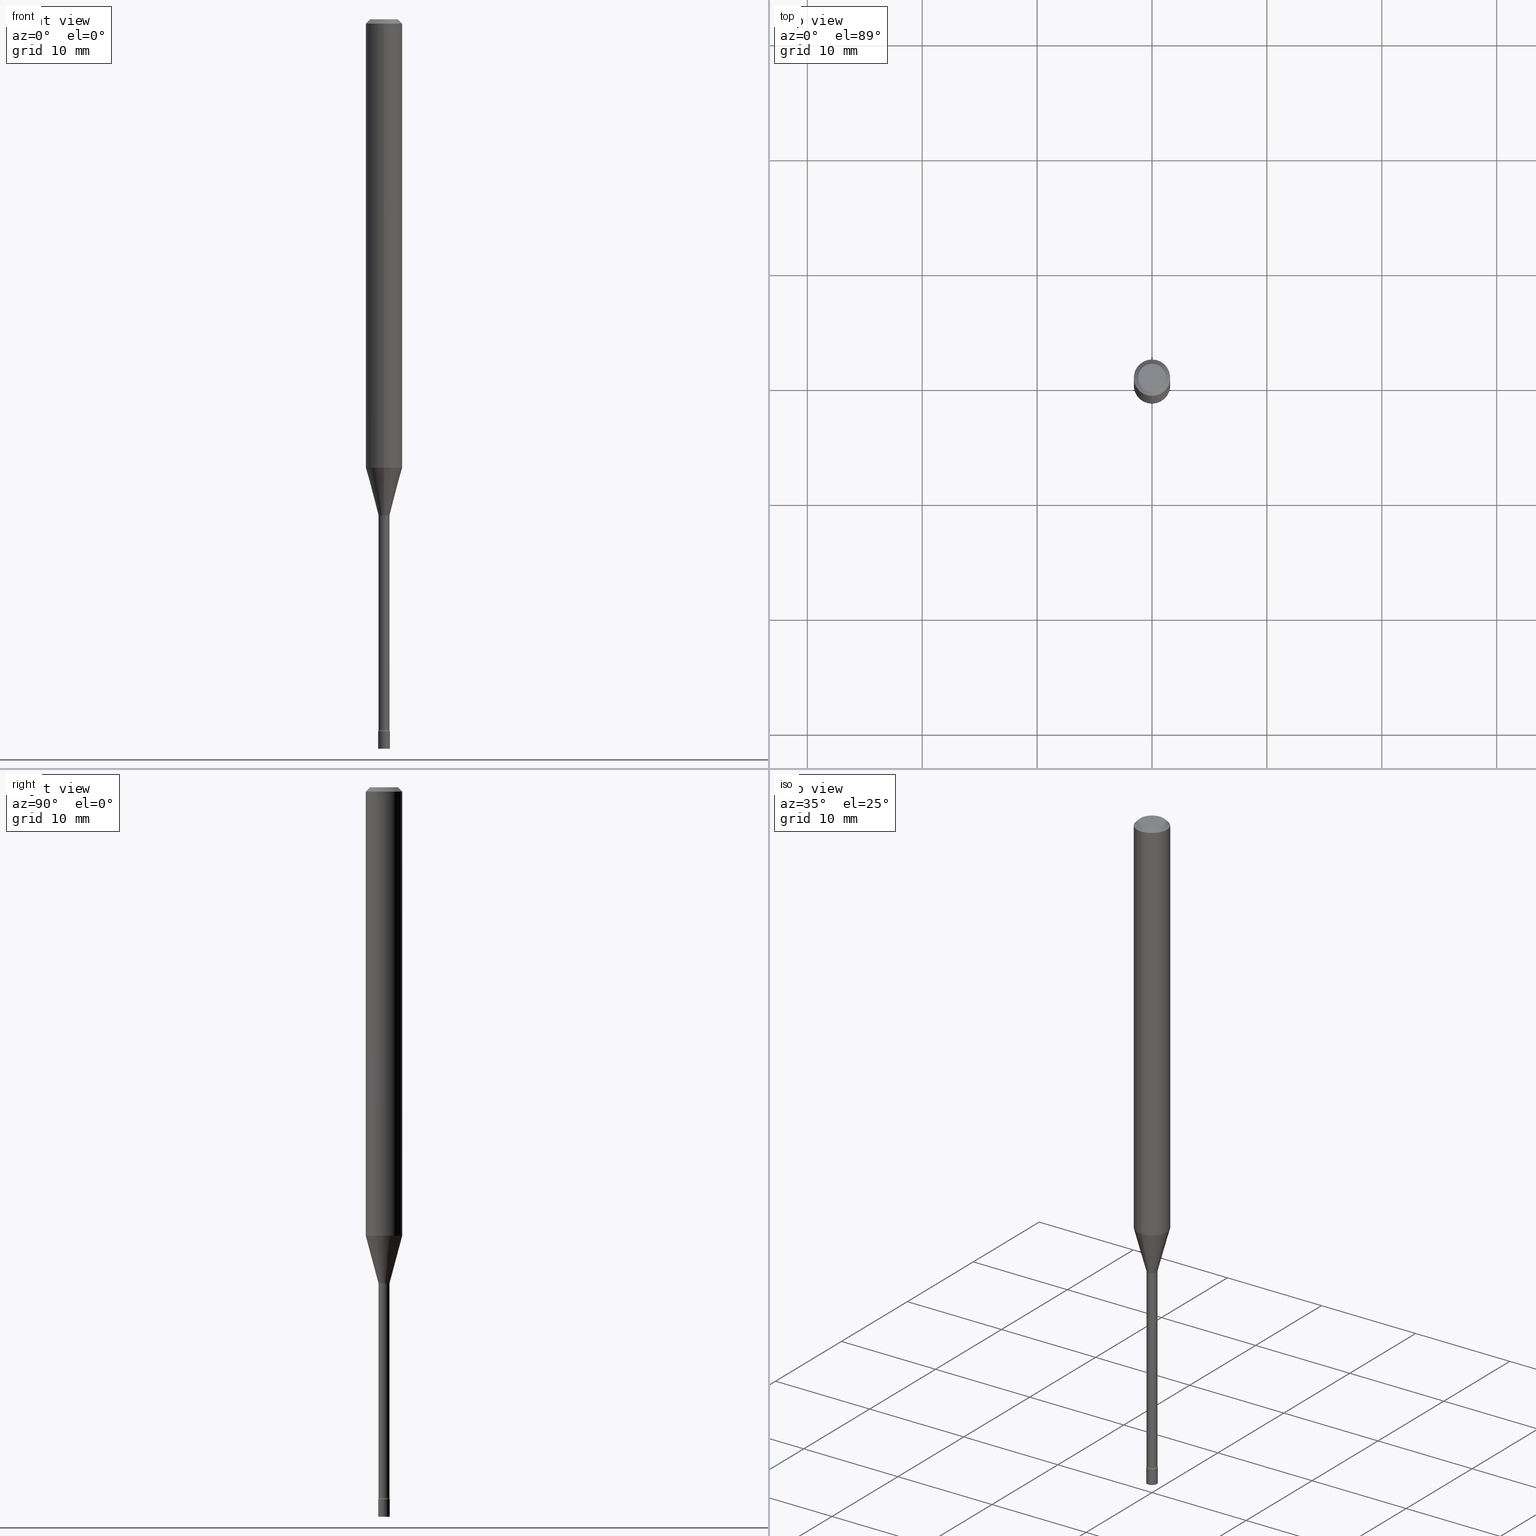
[diagram: canonical four-view strip — front | top / right | iso, engineering-drawing reading convention]
A machine part, canonical four-view strip (front | top / right | iso — engineering-drawing reading convention). The complete STEP part file that produces these views, byte-faithful:
ISO-10303-21;
HEADER;
FILE_DESCRIPTION (( 'STEP AP203' ),
    '1' );
FILE_NAME ('09646.STEP',
    '2024-03-09T00:20:42',
    ( '' ),
    ( '' ),
    'SwSTEP 2.0',
    'SolidWorks 2023',
    '' );
FILE_SCHEMA (( 'CONFIG_CONTROL_DESIGN' ));
ENDSEC;

DATA;
#1 = DIRECTION ( 'NONE',  ( -6.982962677686265922E-15, -1.000000000000000000, 3.491544618691502502E-15 ) ) ;
#2 = ADVANCED_FACE ( 'NONE', ( #11 ), #454, .T. ) ;
#3 = APPLICATION_CONTEXT ( 'configuration controlled 3d designs of mechanical parts and assemblies' ) ;
#4 = ORIENTED_EDGE ( 'NONE', *, *, #144, .F. ) ;
#5 = FACE_OUTER_BOUND ( 'NONE', #118, .T. ) ;
#6 = ORIENTED_EDGE ( 'NONE', *, *, #44, .F. ) ;
#7 = PLANE ( 'NONE',  #184 ) ;
#8 = AXIS2_PLACEMENT_3D ( 'NONE', #255, #250, #416 ) ;
#9 = CYLINDRICAL_SURFACE ( 'NONE', #372, 0.06250000000000000000 ) ;
#10 = CONICAL_SURFACE ( 'NONE', #68, 0.01931111260566397564, 0.2617993877991498519 ) ;
#11 = FACE_OUTER_BOUND ( 'NONE', #288, .T. ) ;
#12 = DATE_TIME_ROLE ( 'creation_date' ) ;
#13 = EDGE_CURVE ( 'NONE', #368, #309, #487, .T. ) ;
#14 = CARTESIAN_POINT ( 'NONE',  ( -1.312796983404428095E-16, -0.01880000000000857374, -2.434121224617320944 ) ) ;
#15 = CARTESIAN_POINT ( 'NONE',  ( 5.952459966126715215E-29, -8.498842863055376758E-15, -2.434121224617320944 ) ) ;
#16 = PERSON_AND_ORGANIZATION ( #265, #503 ) ;
#17 = PERSON_AND_ORGANIZATION_ROLE ( 'design_supplier' ) ;
#18 = CARTESIAN_POINT ( 'NONE',  ( 0.000000000000000000, 0.000000000000000000, 0.000000000000000000 ) ) ;
#19 = AXIS2_PLACEMENT_3D ( 'NONE', #156, #477, #160 ) ;
#20 = CARTESIAN_POINT ( 'NONE',  ( 0.000000000000000000, 0.000000000000000000, 0.000000000000000000 ) ) ;
#21 = DIRECTION ( 'NONE',  ( -2.445424618103204141E-29, 3.491544618691502502E-15, 1.000000000000000000 ) ) ;
#22 = EDGE_LOOP ( 'NONE', ( #30, #277 ) ) ;
#23 = PLANE ( 'NONE',  #125 ) ;
#24 = LINE ( 'NONE', #286, #421 ) ;
#25 = CARTESIAN_POINT ( 'NONE',  ( 6.113672015462842613E-29, -8.728703347107864943E-15, -2.500000000000000000 ) ) ;
#26 = CIRCLE ( 'NONE', #461, 0.01931111260566397564 ) ;
#27 = PLANE ( 'NONE',  #293 ) ;
#28 = EDGE_CURVE ( 'NONE', #481, #315, #24, .T. ) ;
#29 = CYLINDRICAL_SURFACE ( 'NONE', #260, 0.02000000000000000042 ) ;
#30 = ORIENTED_EDGE ( 'NONE', *, *, #128, .T. ) ;
#31 = CARTESIAN_POINT ( 'NONE',  ( 1.396592535537849721E-16, 0.01999999999999147945, -2.440000000000000391 ) ) ;
#32 = ORIENTED_EDGE ( 'NONE', *, *, #326, .T. ) ;
#33 = DIRECTION ( 'NONE',  ( 2.438088387897960049E-29, -3.491481338843145188E-15, -1.000000000000000000 ) ) ;
#34 = AXIS2_PLACEMENT_3D ( 'NONE', #168, #490, #385 ) ;
#35 = ORIENTED_EDGE ( 'NONE', *, *, #445, .F. ) ;
#36 = AXIS2_PLACEMENT_3D ( 'NONE', #108, #270, #164 ) ;
#37 = EDGE_CURVE ( 'NONE', #368, #113, #194, .T. ) ;
#38 = EDGE_LOOP ( 'NONE', ( #58, #468, #4, #279 ) ) ;
#39 = ORIENTED_EDGE ( 'NONE', *, *, #130, .F. ) ;
#40 = EDGE_LOOP ( 'NONE', ( #479, #112, #47, #45 ) ) ;
#41 = AXIS2_PLACEMENT_3D ( 'NONE', #266, #71, #74 ) ;
#42 = AXIS2_PLACEMENT_3D ( 'NONE', #72, #472, #356 ) ;
#43 = FACE_OUTER_BOUND ( 'NONE', #325, .T. ) ;
#44 = EDGE_CURVE ( 'NONE', #231, #196, #460, .T. ) ;
#45 = ORIENTED_EDGE ( 'NONE', *, *, #148, .F. ) ;
#46 = DIRECTION ( 'NONE',  ( -2.445424618103204141E-29, 3.491544618691502502E-15, 1.000000000000000000 ) ) ;
#47 = ORIENTED_EDGE ( 'NONE', *, *, #128, .F. ) ;
#48 = CARTESIAN_POINT ( 'NONE',  ( 2.906514588320701631E-16, 0.01931111260565804635, -1.698092501787273001 ) ) ;
#49 = ORIENTED_EDGE ( 'NONE', *, *, #326, .F. ) ;
#50 = AXIS2_PLACEMENT_3D ( 'NONE', #367, #152, #126 ) ;
#51 = APPROVAL_ROLE ( '' ) ;
#52 = DIRECTION ( 'NONE',  ( -2.445468806185136597E-29, 3.491481338843145583E-15, 1.000000000000000000 ) ) ;
#53 = DIRECTION ( 'NONE',  ( 0.000000000000000000, 0.000000000000000000, 1.000000000000000000 ) ) ;
#54 = DIRECTION ( 'NONE',  ( -6.982962677686265922E-15, -1.000000000000000000, 0.000000000000000000 ) ) ;
#55 = DATE_TIME_ROLE ( 'classification_date' ) ;
#56 = LINE ( 'NONE', #177, #183 ) ;
#57 = CC_DESIGN_PERSON_AND_ORGANIZATION_ASSIGNMENT ( #133, #17, ( #95 ) ) ;
#58 = ORIENTED_EDGE ( 'NONE', *, *, #222, .T. ) ;
#59 = CIRCLE ( 'NONE', #269, 0.01880000000000007360 ) ;
#60 = DATE_AND_TIME ( #491, #296 ) ;
#61 = ORIENTED_EDGE ( 'NONE', *, *, #375, .F. ) ;
#62 = CARTESIAN_POINT ( 'NONE',  ( 4.364351673553919652E-16, 0.06249999999999995143, -0.01500000000000024751 ) ) ;
#63 = CARTESIAN_POINT ( 'NONE',  ( 3.668136927154813270E-31, -5.237316928037264353E-17, -0.01500000000000003067 ) ) ;
#64 = CARTESIAN_POINT ( 'NONE',  ( 1.335820343229586211E-16, 0.01879999999999405758, -1.701974787463810923 ) ) ;
#65 = EDGE_CURVE ( 'NONE', #481, #268, #217, .T. ) ;
#66 = FACE_OUTER_BOUND ( 'NONE', #40, .T. ) ;
#67 = AXIS2_PLACEMENT_3D ( 'NONE', #301, #457, #101 ) ;
#68 = AXIS2_PLACEMENT_3D ( 'NONE', #339, #21, #54 ) ;
#69 = CC_DESIGN_SECURITY_CLASSIFICATION ( #518, ( #95 ) ) ;
#70 = VERTEX_POINT ( 'NONE', #463 ) ;
#71 = DIRECTION ( 'NONE',  ( 2.445424618103203300E-29, -3.491544618691502896E-15, -1.000000000000000000 ) ) ;
#72 = CARTESIAN_POINT ( 'NONE',  ( 4.162126251656327251E-29, -5.942413209611424938E-15, -1.701974787463810923 ) ) ;
#73 = ORIENTED_EDGE ( 'NONE', *, *, #197, .F. ) ;
#74 = DIRECTION ( 'NONE',  ( 6.982962677686265922E-15, 1.000000000000000000, -3.491544618691502896E-15 ) ) ;
#75 = FACE_OUTER_BOUND ( 'NONE', #79, .T. ) ;
#76 = ORIENTED_EDGE ( 'NONE', *, *, #105, .T. ) ;
#77 = AXIS2_PLACEMENT_3D ( 'NONE', #334, #52, #297 ) ;
#78 = ORIENTED_EDGE ( 'NONE', *, *, #136, .T. ) ;
#79 = EDGE_LOOP ( 'NONE', ( #358, #359, #312, #389 ) ) ;
#80 = ORIENTED_EDGE ( 'NONE', *, *, #282, .F. ) ;
#81 = ADVANCED_FACE ( 'NONE', ( #88 ), #9, .T. ) ;
#82 = CARTESIAN_POINT ( 'NONE',  ( 0.02000000000000000042, -8.658873720331001644E-15, -2.440000000000000391 ) ) ;
#83 = ADVANCED_FACE ( 'NONE', ( #219 ), #426, .T. ) ;
#84 = DIRECTION ( 'NONE',  ( -6.982962677686265922E-15, -1.000000000000000000, 0.000000000000000000 ) ) ;
#85 = AXIS2_PLACEMENT_3D ( 'NONE', #371, #451, #377 ) ;
#86 = CIRCLE ( 'NONE', #172, 0.01880000000000000074 ) ;
#87 = DIRECTION ( 'NONE',  ( -2.445424618103204141E-29, 3.491544618691502896E-15, 1.000000000000000000 ) ) ;
#88 = FACE_OUTER_BOUND ( 'NONE', #237, .T. ) ;
#89 = DIRECTION ( 'NONE',  ( -2.445424618103204141E-29, 3.491544618691502502E-15, 1.000000000000000000 ) ) ;
#90 = DIRECTION ( 'NONE',  ( -2.445468806185136597E-29, 3.491481338843145583E-15, 1.000000000000000000 ) ) ;
#91 = EDGE_LOOP ( 'NONE', ( #437, #386, #6, #150 ) ) ;
#92 = APPROVAL_DATE_TIME ( #169, #340 ) ;
#93 = PERSON_AND_ORGANIZATION ( #265, #503 ) ;
#94 = DIRECTION ( 'NONE',  ( -6.982962677686265922E-15, -1.000000000000000000, 3.483106191921935554E-15 ) ) ;
#95 = PRODUCT_DEFINITION_FORMATION_WITH_SPECIFIED_SOURCE ( 'ANY', '', #350, .NOT_KNOWN. ) ;
#96 = SECURITY_CLASSIFICATION_LEVEL ( 'unclassified' ) ;
#97 = COORDINATED_UNIVERSAL_TIME_OFFSET ( 5, 0, .BEHIND. ) ;
#98 = EDGE_CURVE ( 'NONE', #221, #115, #406, .T. ) ;
#99 = DIRECTION ( 'NONE',  ( -6.982962677686265922E-15, -1.000000000000000000, 3.483106191921935554E-15 ) ) ;
#100 = DIRECTION ( 'NONE',  ( 1.000000000000000000, 0.000000000000000000, 0.000000000000000000 ) ) ;
#101 = DIRECTION ( 'NONE',  ( -6.982962677686266711E-15, -1.000000000000000000, 0.000000000000000000 ) ) ;
#102 = DIRECTION ( 'NONE',  ( 7.105427357601003436E-15, 1.000000000000000000, 0.000000000000000000 ) ) ;
#103 = AXIS2_PLACEMENT_3D ( 'NONE', #202, #162, #1 ) ;
#104 = CARTESIAN_POINT ( 'NONE',  ( -3.773273898774340269E-16, -0.04749999999999999362, 1.369374642527742863E-16 ) ) ;
#105 = EDGE_CURVE ( 'NONE', #315, #190, #516, .T. ) ;
#106 = CARTESIAN_POINT ( 'NONE',  ( 3.668136927154813270E-31, -5.237316928037264353E-17, -0.01500000000000003067 ) ) ;
#107 = ORIENTED_EDGE ( 'NONE', *, *, #324, .F. ) ;
#108 = CARTESIAN_POINT ( 'NONE',  ( 5.966836068171818574E-29, -8.519368869607266814E-15, -2.440000000000000391 ) ) ;
#109 = VECTOR ( 'NONE', #264, 39.37007874015748143 ) ;
#110 = APPROVAL_PERSON_ORGANIZATION ( #127, #485, #341 ) ;
#111 = CARTESIAN_POINT ( 'NONE',  ( -4.287811248607203282E-16, -0.06250000000000005551, -0.01499999999999981209 ) ) ;
#112 = ORIENTED_EDGE ( 'NONE', *, *, #282, .T. ) ;
#113 = VERTEX_POINT ( 'NONE', #14 ) ;
#114 = CARTESIAN_POINT ( 'NONE',  ( -1.312796983404601891E-16, -0.01880000000000594043, -1.701974787463810923 ) ) ;
#115 = VERTEX_POINT ( 'NONE', #173 ) ;
#116 = AXIS2_PLACEMENT_3D ( 'NONE', #209, #369, #193 ) ;
#117 = EDGE_CURVE ( 'NONE', #353, #201, #232, .T. ) ;
#118 = EDGE_LOOP ( 'NONE', ( #273, #226, #322, #229 ) ) ;
#119 = FACE_OUTER_BOUND ( 'NONE', #123, .T. ) ;
#120 = ORIENTED_EDGE ( 'NONE', *, *, #445, .T. ) ;
#121 = CARTESIAN_POINT ( 'NONE',  ( -1.348487785899068030E-16, -0.01931111260566990492, -1.698092501787273001 ) ) ;
#122 =( CONVERSION_BASED_UNIT ( 'INCH', #482 ) LENGTH_UNIT ( ) NAMED_UNIT ( #314 ) );
#123 = EDGE_LOOP ( 'NONE', ( #39, #402, #430, #107 ) ) ;
#124 = AXIS2_PLACEMENT_3D ( 'NONE', #20, #497, #141 ) ;
#125 = AXIS2_PLACEMENT_3D ( 'NONE', #345, #33, #499 ) ;
#126 = DIRECTION ( 'NONE',  ( -6.982962677686265922E-15, -1.000000000000000000, 3.491544618691502502E-15 ) ) ;
#127 = PERSON_AND_ORGANIZATION ( #265, #503 ) ;
#128 = EDGE_CURVE ( 'NONE', #240, #435, #305, .T. ) ;
#129 = LINE ( 'NONE', #338, #145 ) ;
#130 = EDGE_CURVE ( 'NONE', #368, #196, #129, .T. ) ;
#131 = DATE_AND_TIME ( #378, #470 ) ;
#132 = AXIS2_PLACEMENT_3D ( 'NONE', #484, #302, #102 ) ;
#133 = PERSON_AND_ORGANIZATION ( #265, #503 ) ;
#134 = AXIS2_PLACEMENT_3D ( 'NONE', #143, #307, #263 ) ;
#135 = LINE ( 'NONE', #140, #210 ) ;
#136 = EDGE_CURVE ( 'NONE', #190, #115, #135, .T. ) ;
#137 = PERSON_AND_ORGANIZATION_ROLE ( 'classification_officer' ) ;
#138 = CARTESIAN_POINT ( 'NONE',  ( 3.758396032934700996E-29, -5.366187674140293231E-15, -1.536909379709240131 ) ) ;
#139 = PERSON_AND_ORGANIZATION ( #265, #503 ) ;
#140 = CARTESIAN_POINT ( 'NONE',  ( -4.364351673553916201E-16, -0.06250000000000000000, 2.182215386682189064E-16 ) ) ;
#141 = DIRECTION ( 'NONE',  ( -6.982962677686265922E-15, -1.000000000000000000, 3.491544618691502502E-15 ) ) ;
#142 = CARTESIAN_POINT ( 'NONE',  ( -1.348487785899068030E-16, -0.01931111260566990492, -1.698092501787273001 ) ) ;
#143 = CARTESIAN_POINT ( 'NONE',  ( 5.966836068171818574E-29, -8.519368869607266814E-15, -2.440000000000000391 ) ) ;
#144 = EDGE_CURVE ( 'NONE', #190, #315, #501, .T. ) ;
#145 = VECTOR ( 'NONE', #214, 39.37007874015748143 ) ;
#146 = AXIS2_PLACEMENT_3D ( 'NONE', #238, #245, #228 ) ;
#147 = CARTESIAN_POINT ( 'NONE',  ( 6.113672015462842613E-29, -8.728703347107864943E-15, -2.500000000000000000 ) ) ;
#148 = EDGE_CURVE ( 'NONE', #246, #240, #56, .T. ) ;
#149 = APPROVAL ( #215, 'UNSPECIFIED' ) ;
#150 = ORIENTED_EDGE ( 'NONE', *, *, #274, .F. ) ;
#151 = CARTESIAN_POINT ( 'NONE',  ( -4.364351673553541985E-16, -0.06250000000000538458, -1.536909379709239909 ) ) ;
#152 = DIRECTION ( 'NONE',  ( -2.445424618103204141E-29, 3.491544618691502502E-15, 1.000000000000000000 ) ) ;
#153 = ORIENTED_EDGE ( 'NONE', *, *, #117, .F. ) ;
#154 = LINE ( 'NONE', #409, #159 ) ;
#155 = ORIENTED_EDGE ( 'NONE', *, *, #117, .T. ) ;
#156 = CARTESIAN_POINT ( 'NONE',  ( -2.360241385057365982E-16, -0.03380000000000854543, -2.434121224617320944 ) ) ;
#157 = EDGE_CURVE ( 'NONE', #268, #231, #292, .T. ) ;
#158 = EDGE_LOOP ( 'NONE', ( #401, #343, #438, #234 ) ) ;
#159 = VECTOR ( 'NONE', #383, 39.37007874015748143 ) ;
#160 = DIRECTION ( 'NONE',  ( -6.982962677686262766E-15, -1.000000000000000000, 0.000000000000000000 ) ) ;
#161 = ORIENTED_EDGE ( 'NONE', *, *, #157, .T. ) ;
#162 = DIRECTION ( 'NONE',  ( -2.445424618103204141E-29, 3.491544618691502502E-15, 1.000000000000000000 ) ) ;
#163 = ORIENTED_EDGE ( 'NONE', *, *, #348, .T. ) ;
#164 = DIRECTION ( 'NONE',  ( -6.982962677686265922E-15, -1.000000000000000000, 0.000000000000000000 ) ) ;
#165 = CIRCLE ( 'NONE', #19, 0.01499999999999997689 ) ;
#166 = COORDINATED_UNIVERSAL_TIME_OFFSET ( 5, 0, .BEHIND. ) ;
#167 = LOCAL_TIME ( 19, 20, 42.00000000000000000, #496 ) ;
#168 = CARTESIAN_POINT ( 'NONE',  ( 4.152557207687056191E-29, -5.928965736655743861E-15, -1.698092501787273001 ) ) ;
#169 = DATE_AND_TIME ( #176, #294 ) ;
#170 = PRODUCT_DEFINITION ( 'UNKNOWN', '', #95, #458 ) ;
#171 = PERSON_AND_ORGANIZATION ( #265, #503 ) ;
#172 = AXIS2_PLACEMENT_3D ( 'NONE', #408, #204, #483 ) ;
#173 = CARTESIAN_POINT ( 'NONE',  ( -4.364351673553912750E-16, -0.06250000000000005551, -0.01499999999999981209 ) ) ;
#174 = EDGE_LOOP ( 'NONE', ( #61, #120, #32, #404 ) ) ;
#175 = ORIENTED_EDGE ( 'NONE', *, *, #65, .T. ) ;
#176 = CALENDAR_DATE ( 2024, 8, 3 ) ;
#177 = CARTESIAN_POINT ( 'NONE',  ( 0.02000000000000000042, -1.396592535537253145E-16, 9.752353551591871936E-31 ) ) ;
#178 = CARTESIAN_POINT ( 'NONE',  ( 1.378452907375191717E-16, 0.01879999999999157692, -2.434121224617320944 ) ) ;
#179 = ORIENTED_EDGE ( 'NONE', *, *, #148, .T. ) ;
#180 = DIRECTION ( 'NONE',  ( -2.445424618103204141E-29, 3.491544618691502502E-15, 1.000000000000000000 ) ) ;
#181 = FACE_OUTER_BOUND ( 'NONE', #22, .T. ) ;
#182 = ADVANCED_FACE ( 'NONE', ( #261 ), #218, .T. ) ;
#183 = VECTOR ( 'NONE', #342, 39.37007874015748143 ) ;
#184 = AXIS2_PLACEMENT_3D ( 'NONE', #31, #203, #188 ) ;
#185 = DIRECTION ( 'NONE',  ( 6.982962677686265922E-15, 1.000000000000000000, -3.483106191921935554E-15 ) ) ;
#186 = DIRECTION ( 'NONE',  ( 6.982962677686265922E-15, 1.000000000000000000, -3.483106191921935554E-15 ) ) ;
#187 = DIRECTION ( 'NONE',  ( 2.445424618103204141E-29, -3.491544618691502502E-15, -1.000000000000000000 ) ) ;
#188 = DIRECTION ( 'NONE',  ( -6.982962677686265922E-15, -1.000000000000000000, 3.491544618691502896E-15 ) ) ;
#189 = ADVANCED_FACE ( 'NONE', ( #511 ), #504, .F. ) ;
#190 = VERTEX_POINT ( 'NONE', #151 ) ;
#191 = DIRECTION ( 'NONE',  ( 1.000000000000000000, -6.982962677686284065E-15, 0.000000000000000000 ) ) ;
#192 = CARTESIAN_POINT ( 'NONE',  ( 4.152557207687056191E-29, -5.928965736655743861E-15, -1.698092501787273001 ) ) ;
#193 = DIRECTION ( 'NONE',  ( -6.982962677686265922E-15, -1.000000000000000000, 3.491544618691502502E-15 ) ) ;
#194 = CIRCLE ( 'NONE', #258, 0.01880000000000007360 ) ;
#195 = AXIS2_PLACEMENT_3D ( 'NONE', #382, #253, #257 ) ;
#196 = VERTEX_POINT ( 'NONE', #64 ) ;
#197 = EDGE_CURVE ( 'NONE', #315, #221, #313, .T. ) ;
#198 = PRODUCT_DEFINITION_SHAPE ( 'NONE', 'NONE',  #170 ) ;
#199 = ORIENTED_EDGE ( 'NONE', *, *, #375, .T. ) ;
#200 = AXIS2_PLACEMENT_3D ( 'NONE', #147, #344, #303 ) ;
#201 = VERTEX_POINT ( 'NONE', #104 ) ;
#202 = CARTESIAN_POINT ( 'NONE',  ( 5.952567525274821981E-29, -8.498688832233400382E-15, -2.434121224617320944 ) ) ;
#203 = DIRECTION ( 'NONE',  ( -2.445424618103203300E-29, 3.491544618691502896E-15, 1.000000000000000000 ) ) ;
#204 = DIRECTION ( 'NONE',  ( -2.445424618103204141E-29, 3.491544618691502502E-15, 1.000000000000000000 ) ) ;
#205 = VERTEX_POINT ( 'NONE', #396 ) ;
#206 = CYLINDRICAL_SURFACE ( 'NONE', #146, 0.01880000000000003543 ) ;
#207 = ADVANCED_FACE ( 'NONE', ( #354 ), #23, .T. ) ;
#208 = ORIENTED_EDGE ( 'NONE', *, *, #290, .F. ) ;
#209 = CARTESIAN_POINT ( 'NONE',  ( 4.162126251656327251E-29, -5.942413209611424938E-15, -1.701974787463810923 ) ) ;
#210 = VECTOR ( 'NONE', #252, 39.37007874015748143 ) ;
#211 = CIRCLE ( 'NONE', #306, 0.01500000000000003240 ) ;
#212 = DIRECTION ( 'NONE',  ( -2.438088387897960049E-29, 3.491481338843145188E-15, 1.000000000000000000 ) ) ;
#213 = EDGE_CURVE ( 'NONE', #205, #309, #275, .T. ) ;
#214 = DIRECTION ( 'NONE',  ( -2.445424618103204141E-29, 3.491544618691502896E-15, 1.000000000000000000 ) ) ;
#215 = APPROVAL_STATUS ( 'not_yet_approved' ) ;
#216 = DIRECTION ( 'NONE',  ( -2.445468806185136597E-29, 3.491481338843145583E-15, 1.000000000000000000 ) ) ;
#217 = CIRCLE ( 'NONE', #390, 0.01931111260566397564 ) ;
#218 = CONICAL_SURFACE ( 'NONE', #502, 0.06250000000000000000, 0.7853981633974483900 ) ;
#219 = FACE_OUTER_BOUND ( 'NONE', #38, .T. ) ;
#220 = DIRECTION ( 'NONE',  ( -2.445424618103204141E-29, 3.491544618691502502E-15, 1.000000000000000000 ) ) ;
#221 = VERTEX_POINT ( 'NONE', #425 ) ;
#222 = EDGE_CURVE ( 'NONE', #268, #481, #26, .T. ) ;
#223 = DIRECTION ( 'NONE',  ( 2.445424618103204141E-29, -3.491544618691502502E-15, -1.000000000000000000 ) ) ;
#224 = AXIS2_PLACEMENT_3D ( 'NONE', #376, #53, #100 ) ;
#225 =( GEOMETRIC_REPRESENTATION_CONTEXT ( 3 ) GLOBAL_UNCERTAINTY_ASSIGNED_CONTEXT ( ( #428 ) ) GLOBAL_UNIT_ASSIGNED_CONTEXT ( ( #122, #412, #447 ) ) REPRESENTATION_CONTEXT ( 'NONE', 'WORKASPACE' ) );
#226 = ORIENTED_EDGE ( 'NONE', *, *, #397, .T. ) ;
#227 = EDGE_CURVE ( 'NONE', #113, #205, #165, .T. ) ;
#228 = DIRECTION ( 'NONE',  ( -6.982962677686267499E-15, -1.000000000000000000, 3.491544618691502896E-15 ) ) ;
#229 = ORIENTED_EDGE ( 'NONE', *, *, #157, .F. ) ;
#230 = CARTESIAN_POINT ( 'NONE',  ( -0.02000000000000000042, -8.481850359790549832E-15, -2.440000000000000391 ) ) ;
#231 = VERTEX_POINT ( 'NONE', #114 ) ;
#232 = CIRCLE ( 'NONE', #8, 0.04749999999999999362 ) ;
#233 = TOROIDAL_SURFACE ( 'NONE', #103, 0.03380000000000004529, 0.01499999999999997169 ) ;
#234 = ORIENTED_EDGE ( 'NONE', *, *, #213, .T. ) ;
#235 = ORIENTED_EDGE ( 'NONE', *, *, #197, .T. ) ;
#236 = APPLICATION_CONTEXT ( 'configuration controlled 3d designs of mechanical parts and assemblies' ) ;
#237 = EDGE_LOOP ( 'NONE', ( #73, #76, #78, #509 ) ) ;
#238 = CARTESIAN_POINT ( 'NONE',  ( 0.000000000000000000, 0.000000000000000000, 0.000000000000000000 ) ) ;
#239 = CIRCLE ( 'NONE', #310, 0.02000000000000000042 ) ;
#240 = VERTEX_POINT ( 'NONE', #82 ) ;
#241 = DIRECTION ( 'NONE',  ( 1.000000000000000000, -6.982962677686265922E-15, 4.876176775795935793E-29 ) ) ;
#242 = CC_DESIGN_DATE_AND_TIME_ASSIGNMENT ( #60, #12, ( #170 ) ) ;
#243 = CARTESIAN_POINT ( 'NONE',  ( 3.668136927154813270E-31, -5.237316928037264353E-17, -0.01500000000000003067 ) ) ;
#244 = DIRECTION ( 'NONE',  ( -6.982962677686265922E-15, -1.000000000000000000, 0.000000000000000000 ) ) ;
#245 = DIRECTION ( 'NONE',  ( -2.445424618103204141E-29, 3.491544618691502502E-15, 1.000000000000000000 ) ) ;
#246 = VERTEX_POINT ( 'NONE', #278 ) ;
#247 = ADVANCED_FACE ( 'NONE', ( #316 ), #233, .F. ) ;
#248 = VECTOR ( 'NONE', #87, 39.37007874015748143 ) ;
#249 = MECHANICAL_CONTEXT ( 'NONE', #236, 'mechanical' ) ;
#250 = DIRECTION ( 'NONE',  ( -2.445424618103204141E-29, 3.491544618691502502E-15, 1.000000000000000000 ) ) ;
#251 = DIRECTION ( 'NONE',  ( -6.982962677686265922E-15, -1.000000000000000000, 0.000000000000000000 ) ) ;
#252 = DIRECTION ( 'NONE',  ( -2.445424618103204141E-29, 3.491544618691502896E-15, 1.000000000000000000 ) ) ;
#253 = DIRECTION ( 'NONE',  ( -2.445424618103204141E-29, 3.491544618691502502E-15, 1.000000000000000000 ) ) ;
#254 = APPLICATION_PROTOCOL_DEFINITION ( 'international standard', 'config_control_design', 1994, #236 ) ;
#255 = CARTESIAN_POINT ( 'NONE',  ( 7.069943914895155272E-46, -1.009437152458613675E-31, -2.891090513507206278E-17 ) ) ;
#256 = ORIENTED_EDGE ( 'NONE', *, *, #105, .F. ) ;
#257 = DIRECTION ( 'NONE',  ( -6.982962677686266711E-15, -1.000000000000000000, 3.491544618691502502E-15 ) ) ;
#258 = AXIS2_PLACEMENT_3D ( 'NONE', #262, #180, #346 ) ;
#259 = DATE_AND_TIME ( #456, #167 ) ;
#260 = AXIS2_PLACEMENT_3D ( 'NONE', #392, #216, #241 ) ;
#261 = FACE_OUTER_BOUND ( 'NONE', #272, .T. ) ;
#262 = CARTESIAN_POINT ( 'NONE',  ( 5.952459966126715215E-29, -8.498842863055376758E-15, -2.434121224617320944 ) ) ;
#263 = DIRECTION ( 'NONE',  ( -6.982962677686265922E-15, -1.000000000000000000, 0.000000000000000000 ) ) ;
#264 = DIRECTION ( 'NONE',  ( 4.937700262164548042E-15, 0.7071067811865451302, -0.7071067811865499042 ) ) ;
#265 = PERSON ( 'UNSPECIFIED', 'UNSPECIFIED', 'UNSPECIFIED', ('UNSPECIFIED'), ('UNSPECIFIED'), ('UNSPECIFIED') ) ;
#266 = CARTESIAN_POINT ( 'NONE',  ( 3.316907271900976096E-16, 0.04749999999999999362, -1.803038219553823805E-16 ) ) ;
#267 = CC_DESIGN_PERSON_AND_ORGANIZATION_ASSIGNMENT ( #93, #295, ( #350 ) ) ;
#268 = VERTEX_POINT ( 'NONE', #121 ) ;
#269 = AXIS2_PLACEMENT_3D ( 'NONE', #15, #493, #251 ) ;
#270 = DIRECTION ( 'NONE',  ( -2.445424618103204141E-29, 3.491544618691502502E-15, 1.000000000000000000 ) ) ;
#271 = DIRECTION ( 'NONE',  ( -4.851104656540964275E-15, -0.7071067811865500152, -0.7071067811865450192 ) ) ;
#272 = EDGE_LOOP ( 'NONE', ( #35, #153, #163, #465 ) ) ;
#273 = ORIENTED_EDGE ( 'NONE', *, *, #65, .F. ) ;
#274 = EDGE_CURVE ( 'NONE', #113, #231, #283, .T. ) ;
#275 = CIRCLE ( 'NONE', #134, 0.02000000000000000042 ) ;
#276 = APPROVAL_PERSON_ORGANIZATION ( #171, #149, #51 ) ;
#277 = ORIENTED_EDGE ( 'NONE', *, *, #411, .T. ) ;
#278 = CARTESIAN_POINT ( 'NONE',  ( 0.02000000000000000042, -8.868362600661589961E-15, -2.500000000000000000 ) ) ;
#279 = ORIENTED_EDGE ( 'NONE', *, *, #381, .F. ) ;
#280 = CYLINDRICAL_SURFACE ( 'NONE', #320, 0.02000000000000000042 ) ;
#281 = CARTESIAN_POINT ( 'NONE',  ( 4.162051044654971731E-29, -5.942520910317883342E-15, -1.701974787463810923 ) ) ;
#282 = EDGE_CURVE ( 'NONE', #70, #435, #154, .T. ) ;
#283 = LINE ( 'NONE', #441, #248 ) ;
#284 = CLOSED_SHELL ( 'NONE', ( #391, #300, #431, #207 ) ) ;
#285 = CIRCLE ( 'NONE', #200, 0.02000000000000000042 ) ;
#286 = CARTESIAN_POINT ( 'NONE',  ( 1.372137078140398694E-16, 0.01931111260565804635, -1.698092501787273001 ) ) ;
#287 = DIRECTION ( 'NONE',  ( -6.982962677686267499E-15, -1.000000000000000000, 3.491544618691502896E-15 ) ) ;
#288 = EDGE_LOOP ( 'NONE', ( #515, #235, #49, #395 ) ) ;
#289 = ADVANCED_FACE ( 'NONE', ( #330 ), #436, .T. ) ;
#290 = EDGE_CURVE ( 'NONE', #70, #246, #407, .T. ) ;
#291 = DIRECTION ( 'NONE',  ( -2.445424618103204141E-29, 3.491544618691502502E-15, 1.000000000000000000 ) ) ;
#292 = CIRCLE ( 'NONE', #67, 0.01500000000000003240 ) ;
#293 = AXIS2_PLACEMENT_3D ( 'NONE', #329, #212, #379 ) ;
#294 = LOCAL_TIME ( 19, 20, 42.00000000000000000, #97 ) ;
#295 = PERSON_AND_ORGANIZATION_ROLE ( 'design_owner' ) ;
#296 = LOCAL_TIME ( 19, 20, 42.00000000000000000, #450 ) ;
#297 = DIRECTION ( 'NONE',  ( 1.000000000000000000, -6.982962677686284065E-15, 0.000000000000000000 ) ) ;
#298 = DIRECTION ( 'NONE',  ( -2.445424618103204141E-29, 3.491544618691502502E-15, 1.000000000000000000 ) ) ;
#299 = APPROVAL_STATUS ( 'not_yet_approved' ) ;
#300 = ADVANCED_FACE ( 'NONE', ( #181 ), #27, .T. ) ;
#301 = CARTESIAN_POINT ( 'NONE',  ( -2.360241385057541996E-16, -0.03380000000000594335, -1.701974787463810923 ) ) ;
#302 = DIRECTION ( 'NONE',  ( 1.000000000000000000, -7.105427357601001070E-15, 4.926316283496719883E-29 ) ) ;
#303 = DIRECTION ( 'NONE',  ( 1.000000000000000000, -6.982962677686284065E-15, 0.000000000000000000 ) ) ;
#304 = DIRECTION ( 'NONE',  ( -2.445468806185136597E-29, 3.491481338843145583E-15, 1.000000000000000000 ) ) ;
#305 = CIRCLE ( 'NONE', #77, 0.02000000000000000042 ) ;
#306 = AXIS2_PLACEMENT_3D ( 'NONE', #466, #439, #432 ) ;
#307 = DIRECTION ( 'NONE',  ( -2.445424618103204141E-29, 3.491544618691502502E-15, 1.000000000000000000 ) ) ;
#308 = EDGE_CURVE ( 'NONE', #113, #368, #59, .T. ) ;
#309 = VERTEX_POINT ( 'NONE', #335 ) ;
#310 = AXIS2_PLACEMENT_3D ( 'NONE', #480, #90, #323 ) ;
#311 = CARTESIAN_POINT ( 'NONE',  ( 0.000000000000000000, 0.000000000000000000, 0.000000000000000000 ) ) ;
#312 = ORIENTED_EDGE ( 'NONE', *, *, #403, .T. ) ;
#313 = LINE ( 'NONE', #351, #427 ) ;
#314 = DIMENSIONAL_EXPONENTS ( 1.000000000000000000, 0.000000000000000000, 0.000000000000000000, 0.000000000000000000, 0.000000000000000000, 0.000000000000000000, 0.000000000000000000 ) ;
#315 = VERTEX_POINT ( 'NONE', #327 ) ;
#316 = FACE_OUTER_BOUND ( 'NONE', #158, .T. ) ;
#317 = CC_DESIGN_PERSON_AND_ORGANIZATION_ASSIGNMENT ( #139, #388, ( #95 ) ) ;
#318 = ORIENTED_EDGE ( 'NONE', *, *, #381, .T. ) ;
#319 = DIRECTION ( 'NONE',  ( -2.445424618103204141E-29, 3.491544618691502502E-15, 1.000000000000000000 ) ) ;
#320 = AXIS2_PLACEMENT_3D ( 'NONE', #311, #405, #512 ) ;
#321 = LOCAL_TIME ( 19, 20, 42.00000000000000000, #166 ) ;
#322 = ORIENTED_EDGE ( 'NONE', *, *, #324, .T. ) ;
#323 = DIRECTION ( 'NONE',  ( 1.000000000000000000, -6.982962677686284065E-15, 0.000000000000000000 ) ) ;
#324 = EDGE_CURVE ( 'NONE', #196, #231, #86, .T. ) ;
#325 = EDGE_LOOP ( 'NONE', ( #80, #459, #179, #476 ) ) ;
#326 = EDGE_CURVE ( 'NONE', #115, #221, #469, .T. ) ;
#327 = CARTESIAN_POINT ( 'NONE',  ( 4.440892098500999885E-16, 0.06249999999999461542, -1.536909379709240575 ) ) ;
#328 = AXIS2_PLACEMENT_3D ( 'NONE', #413, #424, #94 ) ;
#329 = CARTESIAN_POINT ( 'NONE',  ( 5.966943887091733341E-29, -8.519214466777275048E-15, -2.440000000000000391 ) ) ;
#330 = FACE_OUTER_BOUND ( 'NONE', #174, .T. ) ;
#331 = APPROVAL_DATE_TIME ( #259, #485 ) ;
#332 = APPROVAL_ROLE ( '' ) ;
#333 = PERSON_AND_ORGANIZATION ( #265, #503 ) ;
#334 = CARTESIAN_POINT ( 'NONE',  ( 5.966943887091733341E-29, -8.519214466777275048E-15, -2.440000000000000391 ) ) ;
#335 = CARTESIAN_POINT ( 'NONE',  ( 1.421085471520795991E-16, 0.01999999999999146905, -2.440000000000000391 ) ) ;
#336 = CLOSED_SHELL ( 'NONE', ( #475, #434, #462, #289, #2, #83, #362, #81, #182, #189, #492, #247, #449, #410 ) ) ;
#337 = TOROIDAL_SURFACE ( 'NONE', #42, 0.03380000000000000365, 0.01500000000000003240 ) ;
#338 = CARTESIAN_POINT ( 'NONE',  ( 1.335820343228990867E-16, 0.01880000000000003543, -6.564103883140037808E-17 ) ) ;
#339 = CARTESIAN_POINT ( 'NONE',  ( 4.152557207687056191E-29, -5.928965736655743861E-15, -1.698092501787273001 ) ) ;
#340 = APPROVAL ( #299, 'UNSPECIFIED' ) ;
#341 = APPROVAL_ROLE ( '' ) ;
#342 = DIRECTION ( 'NONE',  ( -2.445468806185136877E-29, 3.491481338843145188E-15, 1.000000000000000000 ) ) ;
#343 = ORIENTED_EDGE ( 'NONE', *, *, #308, .F. ) ;
#344 = DIRECTION ( 'NONE',  ( -2.445468806185136597E-29, 3.491481338843145583E-15, 1.000000000000000000 ) ) ;
#345 = CARTESIAN_POINT ( 'NONE',  ( 1.396592535537864759E-16, 0.01999999999999127129, -2.500000000000000000 ) ) ;
#346 = DIRECTION ( 'NONE',  ( -6.982962677686265922E-15, -1.000000000000000000, 0.000000000000000000 ) ) ;
#347 = TOROIDAL_SURFACE ( 'NONE', #116, 0.03380000000000000365, 0.01500000000000003240 ) ;
#348 = EDGE_CURVE ( 'NONE', #353, #221, #387, .T. ) ;
#349 = CARTESIAN_POINT ( 'NONE',  ( 3.840629472727447874E-16, 0.04749999999999999362, -1.947592745229184119E-16 ) ) ;
#350 = PRODUCT ( '09646', '09646', '', ( #249 ) ) ;
#351 = CARTESIAN_POINT ( 'NONE',  ( 4.440892098500625669E-16, 0.06250000000000000000, -2.182215386682189064E-16 ) ) ;
#352 =( LENGTH_UNIT ( ) NAMED_UNIT ( * ) SI_UNIT ( $, .METRE. ) );
#353 = VERTEX_POINT ( 'NONE', #349 ) ;
#354 = FACE_OUTER_BOUND ( 'NONE', #473, .T. ) ;
#355 = AXIS2_PLACEMENT_3D ( 'NONE', #63, #223, #185 ) ;
#356 = DIRECTION ( 'NONE',  ( -6.982962677686265922E-15, -1.000000000000000000, 3.491544618691502502E-15 ) ) ;
#357 = CC_DESIGN_PERSON_AND_ORGANIZATION_ASSIGNMENT ( #380, #137, ( #518 ) ) ;
#358 = ORIENTED_EDGE ( 'NONE', *, *, #37, .F. ) ;
#359 = ORIENTED_EDGE ( 'NONE', *, *, #13, .T. ) ;
#360 = EDGE_LOOP ( 'NONE', ( #374, #366, #161, #364 ) ) ;
#361 = DIRECTION ( 'NONE',  ( -6.982962677686265922E-15, -1.000000000000000000, 0.000000000000000000 ) ) ;
#362 = ADVANCED_FACE ( 'NONE', ( #505 ), #10, .T. ) ;
#363 = AXIS2_PLACEMENT_3D ( 'NONE', #243, #220, #99 ) ;
#364 = ORIENTED_EDGE ( 'NONE', *, *, #44, .T. ) ;
#365 = CYLINDRICAL_SURFACE ( 'NONE', #442, 0.01880000000000003543 ) ;
#366 = ORIENTED_EDGE ( 'NONE', *, *, #222, .F. ) ;
#367 = CARTESIAN_POINT ( 'NONE',  ( 5.952567525274821981E-29, -8.498688832233400382E-15, -2.434121224617320944 ) ) ;
#368 = VERTEX_POINT ( 'NONE', #178 ) ;
#369 = DIRECTION ( 'NONE',  ( -2.445424618103204141E-29, 3.491544618691502502E-15, 1.000000000000000000 ) ) ;
#370 = EDGE_CURVE ( 'NONE', #246, #70, #285, .T. ) ;
#371 = CARTESIAN_POINT ( 'NONE',  ( 3.758396032934700996E-29, -5.366187674140293231E-15, -1.536909379709240131 ) ) ;
#372 = AXIS2_PLACEMENT_3D ( 'NONE', #18, #291, #448 ) ;
#373 = TOROIDAL_SURFACE ( 'NONE', #50, 0.03380000000000004529, 0.01499999999999997169 ) ;
#374 = ORIENTED_EDGE ( 'NONE', *, *, #397, .F. ) ;
#375 = EDGE_CURVE ( 'NONE', #201, #353, #422, .T. ) ;
#376 = CARTESIAN_POINT ( 'NONE',  ( 0.000000000000000000, 0.000000000000000000, 0.000000000000000000 ) ) ;
#377 = DIRECTION ( 'NONE',  ( -6.982962677686265922E-15, -1.000000000000000000, 4.370956789862821150E-15 ) ) ;
#378 = CALENDAR_DATE ( 2024, 8, 3 ) ;
#379 = DIRECTION ( 'NONE',  ( 1.000000000000000000, -6.982962677686265922E-15, 4.876176775795935793E-29 ) ) ;
#380 = PERSON_AND_ORGANIZATION ( #265, #503 ) ;
#381 = EDGE_CURVE ( 'NONE', #268, #190, #498, .T. ) ;
#382 = CARTESIAN_POINT ( 'NONE',  ( 7.069943914895155272E-46, -1.009437152458613675E-31, -2.891090513507206278E-17 ) ) ;
#383 = DIRECTION ( 'NONE',  ( -2.445468806185136877E-29, 3.491481338843145188E-15, 1.000000000000000000 ) ) ;
#384 = APPROVAL_STATUS ( 'not_yet_approved' ) ;
#385 = DIRECTION ( 'NONE',  ( -6.982962677686265922E-15, -1.000000000000000000, 0.000000000000000000 ) ) ;
#386 = ORIENTED_EDGE ( 'NONE', *, *, #130, .T. ) ;
#387 = LINE ( 'NONE', #62, #109 ) ;
#388 = PERSON_AND_ORGANIZATION_ROLE ( 'creator' ) ;
#389 = ORIENTED_EDGE ( 'NONE', *, *, #227, .F. ) ;
#390 = AXIS2_PLACEMENT_3D ( 'NONE', #443, #89, #244 ) ;
#391 = ADVANCED_FACE ( 'NONE', ( #66 ), #29, .T. ) ;
#392 = CARTESIAN_POINT ( 'NONE',  ( 0.000000000000000000, 0.000000000000000000, 0.000000000000000000 ) ) ;
#393 = EDGE_LOOP ( 'NONE', ( #155, #199 ) ) ;
#394 = FACE_OUTER_BOUND ( 'NONE', #474, .T. ) ;
#395 = ORIENTED_EDGE ( 'NONE', *, *, #136, .F. ) ;
#396 = CARTESIAN_POINT ( 'NONE',  ( -1.396592535536655829E-16, -0.02000000000000850750, -2.440000000000000391 ) ) ;
#397 = EDGE_CURVE ( 'NONE', #481, #196, #211, .T. ) ;
#398 = EDGE_LOOP ( 'NONE', ( #433, #175, #318, #256 ) ) ;
#399 = VECTOR ( 'NONE', #271, 39.37007874015748143 ) ;
#400 = CC_DESIGN_APPROVAL ( #149, ( #95 ) ) ;
#401 = ORIENTED_EDGE ( 'NONE', *, *, #13, .F. ) ;
#402 = ORIENTED_EDGE ( 'NONE', *, *, #37, .T. ) ;
#403 = EDGE_CURVE ( 'NONE', #309, #205, #495, .T. ) ;
#404 = ORIENTED_EDGE ( 'NONE', *, *, #348, .F. ) ;
#405 = DIRECTION ( 'NONE',  ( -2.445468806185136597E-29, 3.491481338843145583E-15, 1.000000000000000000 ) ) ;
#406 = CIRCLE ( 'NONE', #328, 0.06250000000000000000 ) ;
#407 = CIRCLE ( 'NONE', #488, 0.02000000000000000042 ) ;
#408 = CARTESIAN_POINT ( 'NONE',  ( 4.162051044654971731E-29, -5.942520910317883342E-15, -1.701974787463810923 ) ) ;
#409 = CARTESIAN_POINT ( 'NONE',  ( -0.02000000000000000042, 1.421085471520200401E-16, -9.837870180509812545E-31 ) ) ;
#410 = ADVANCED_FACE ( 'NONE', ( #486 ), #337, .F. ) ;
#411 = EDGE_CURVE ( 'NONE', #435, #240, #239, .T. ) ;
#412 =( NAMED_UNIT ( * ) PLANE_ANGLE_UNIT ( ) SI_UNIT ( $, .RADIAN. ) );
#413 = CARTESIAN_POINT ( 'NONE',  ( 3.668136927154813270E-31, -5.237316928037264353E-17, -0.01500000000000003067 ) ) ;
#414 = AXIS2_PLACEMENT_3D ( 'NONE', #138, #298, #420 ) ;
#415 = VECTOR ( 'NONE', #464, 39.37007874015748143 ) ;
#416 = DIRECTION ( 'NONE',  ( -6.982962677686266711E-15, -1.000000000000000000, 3.491544618691502502E-15 ) ) ;
#417 = PERSON_AND_ORGANIZATION_ROLE ( 'creator' ) ;
#418 = PRODUCT_RELATED_PRODUCT_CATEGORY ( 'detail', '', ( #350 ) ) ;
#419 = DATE_AND_TIME ( #453, #321 ) ;
#420 = DIRECTION ( 'NONE',  ( -6.982962677686265922E-15, -1.000000000000000000, 4.370956789862821150E-15 ) ) ;
#421 = VECTOR ( 'NONE', #500, 39.37007874015748854 ) ;
#422 = CIRCLE ( 'NONE', #195, 0.04749999999999999362 ) ;
#423 = APPLICATION_PROTOCOL_DEFINITION ( 'international standard', 'config_control_design', 1994, #3 ) ;
#424 = DIRECTION ( 'NONE',  ( -2.445424618103204141E-29, 3.491544618691502502E-15, 1.000000000000000000 ) ) ;
#425 = CARTESIAN_POINT ( 'NONE',  ( 4.440892098501004815E-16, 0.06249999999999995143, -0.01500000000000024751 ) ) ;
#426 = CONICAL_SURFACE ( 'NONE', #34, 0.01931111260566397564, 0.2617993877991498519 ) ;
#427 = VECTOR ( 'NONE', #471, 39.37007874015748143 ) ;
#428 = UNCERTAINTY_MEASURE_WITH_UNIT (LENGTH_MEASURE( 1.000000000000000082E-05 ), #122, 'distance_accuracy_value', 'NONE');
#429 = LINE ( 'NONE', #111, #399 ) ;
#430 = ORIENTED_EDGE ( 'NONE', *, *, #274, .T. ) ;
#431 = ADVANCED_FACE ( 'NONE', ( #43 ), #280, .T. ) ;
#432 = DIRECTION ( 'NONE',  ( 7.105427357600999492E-15, 1.000000000000000000, 0.000000000000000000 ) ) ;
#433 = ORIENTED_EDGE ( 'NONE', *, *, #28, .F. ) ;
#434 = ADVANCED_FACE ( 'NONE', ( #444 ), #365, .T. ) ;
#435 = VERTEX_POINT ( 'NONE', #230 ) ;
#436 = CONICAL_SURFACE ( 'NONE', #355, 0.06250000000000000000, 0.7853981633974483900 ) ;
#437 = ORIENTED_EDGE ( 'NONE', *, *, #308, .T. ) ;
#438 = ORIENTED_EDGE ( 'NONE', *, *, #227, .T. ) ;
#439 = DIRECTION ( 'NONE',  ( 1.000000000000000000, -7.105427357601001070E-15, 4.926316283496719883E-29 ) ) ;
#440 = DIRECTION ( 'NONE',  ( -2.445424618103204141E-29, 3.491544618691502502E-15, 1.000000000000000000 ) ) ;
#441 = CARTESIAN_POINT ( 'NONE',  ( -1.312796983405020727E-16, -0.01880000000000003543, 6.564103883140037808E-17 ) ) ;
#442 = AXIS2_PLACEMENT_3D ( 'NONE', #507, #46, #287 ) ;
#443 = CARTESIAN_POINT ( 'NONE',  ( 4.152557207687056191E-29, -5.928965736655743861E-15, -1.698092501787273001 ) ) ;
#444 = FACE_OUTER_BOUND ( 'NONE', #91, .T. ) ;
#445 = EDGE_CURVE ( 'NONE', #201, #115, #429, .T. ) ;
#446 = APPROVAL_DATE_TIME ( #131, #149 ) ;
#447 =( NAMED_UNIT ( * ) SI_UNIT ( $, .STERADIAN. ) SOLID_ANGLE_UNIT ( ) );
#448 = DIRECTION ( 'NONE',  ( -6.982962677686265922E-15, -1.000000000000000000, 3.491544618691502502E-15 ) ) ;
#449 = ADVANCED_FACE ( 'NONE', ( #119 ), #206, .T. ) ;
#450 = COORDINATED_UNIVERSAL_TIME_OFFSET ( 5, 0, .BEHIND. ) ;
#451 = DIRECTION ( 'NONE',  ( -2.445424618103204141E-29, 3.491544618691502502E-15, 1.000000000000000000 ) ) ;
#452 = MANIFOLD_SOLID_BREP ( 'Body-Move/Copy2[1]', #284 ) ;
#453 = CALENDAR_DATE ( 2024, 8, 3 ) ;
#454 = CYLINDRICAL_SURFACE ( 'NONE', #124, 0.06250000000000000000 ) ;
#455 = MANIFOLD_SOLID_BREP ( 'Body-Move/Copy2[2]', #336 ) ;
#456 = CALENDAR_DATE ( 2024, 8, 3 ) ;
#457 = DIRECTION ( 'NONE',  ( -1.000000000000000000, 6.982962677686265922E-15, -4.883557194083112901E-29 ) ) ;
#458 = DESIGN_CONTEXT ( 'detailed design', #3, 'design' ) ;
#459 = ORIENTED_EDGE ( 'NONE', *, *, #290, .T. ) ;
#460 = CIRCLE ( 'NONE', #508, 0.01880000000000000074 ) ;
#461 = AXIS2_PLACEMENT_3D ( 'NONE', #192, #319, #361 ) ;
#462 = ADVANCED_FACE ( 'NONE', ( #75 ), #373, .F. ) ;
#463 = CARTESIAN_POINT ( 'NONE',  ( -0.02000000000000000042, -8.481850359790549832E-15, -2.500000000000000000 ) ) ;
#464 = DIRECTION ( 'NONE',  ( -1.807323732225327378E-15, -0.2588190451025177974, 0.9659258262890690894 ) ) ;
#465 = ORIENTED_EDGE ( 'NONE', *, *, #98, .T. ) ;
#466 = CARTESIAN_POINT ( 'NONE',  ( 2.401634446869555012E-16, 0.03379999999999406396, -1.701974787463810923 ) ) ;
#467 = CC_DESIGN_PERSON_AND_ORGANIZATION_ASSIGNMENT ( #333, #417, ( #170 ) ) ;
#468 = ORIENTED_EDGE ( 'NONE', *, *, #28, .T. ) ;
#469 = CIRCLE ( 'NONE', #363, 0.06250000000000000000 ) ;
#470 = LOCAL_TIME ( 19, 20, 42.00000000000000000, #494 ) ;
#471 = DIRECTION ( 'NONE',  ( -2.445424618103204141E-29, 3.491544618691502896E-15, 1.000000000000000000 ) ) ;
#472 = DIRECTION ( 'NONE',  ( -2.445424618103204141E-29, 3.491544618691502502E-15, 1.000000000000000000 ) ) ;
#473 = EDGE_LOOP ( 'NONE', ( #513, #208 ) ) ;
#474 = EDGE_LOOP ( 'NONE', ( #519, #514 ) ) ;
#475 = ADVANCED_FACE ( 'NONE', ( #5 ), #347, .F. ) ;
#476 = ORIENTED_EDGE ( 'NONE', *, *, #411, .F. ) ;
#477 = DIRECTION ( 'NONE',  ( -1.000000000000000000, 6.982962677686265922E-15, -4.883557194083112901E-29 ) ) ;
#478 = APPROVAL_PERSON_ORGANIZATION ( #16, #340, #332 ) ;
#479 = ORIENTED_EDGE ( 'NONE', *, *, #370, .T. ) ;
#480 = CARTESIAN_POINT ( 'NONE',  ( 5.966943887091733341E-29, -8.519214466777275048E-15, -2.440000000000000391 ) ) ;
#481 = VERTEX_POINT ( 'NONE', #48 ) ;
#482 = LENGTH_MEASURE_WITH_UNIT ( LENGTH_MEASURE( 0.02539999999999999897 ), #352 );
#483 = DIRECTION ( 'NONE',  ( -6.982962677686265922E-15, -1.000000000000000000, 0.000000000000000000 ) ) ;
#484 = CARTESIAN_POINT ( 'NONE',  ( 2.401634446869736943E-16, 0.03379999999999155208, -2.434121224617320944 ) ) ;
#485 = APPROVAL ( #384, 'UNSPECIFIED' ) ;
#486 = FACE_OUTER_BOUND ( 'NONE', #360, .T. ) ;
#487 = CIRCLE ( 'NONE', #132, 0.01499999999999996822 ) ;
#488 = AXIS2_PLACEMENT_3D ( 'NONE', #25, #304, #191 ) ;
#489 = SHAPE_DEFINITION_REPRESENTATION ( #198, #520 ) ;
#490 = DIRECTION ( 'NONE',  ( -2.445424618103204141E-29, 3.491544618691502502E-15, 1.000000000000000000 ) ) ;
#491 = CALENDAR_DATE ( 2024, 8, 3 ) ;
#492 = ADVANCED_FACE ( 'NONE', ( #394 ), #7, .F. ) ;
#493 = DIRECTION ( 'NONE',  ( -2.445424618103204141E-29, 3.491544618691502502E-15, 1.000000000000000000 ) ) ;
#494 = COORDINATED_UNIVERSAL_TIME_OFFSET ( 5, 0, .BEHIND. ) ;
#495 = CIRCLE ( 'NONE', #36, 0.02000000000000000042 ) ;
#496 = COORDINATED_UNIVERSAL_TIME_OFFSET ( 5, 0, .BEHIND. ) ;
#497 = DIRECTION ( 'NONE',  ( -2.445424618103204141E-29, 3.491544618691502502E-15, 1.000000000000000000 ) ) ;
#498 = LINE ( 'NONE', #142, #415 ) ;
#499 = DIRECTION ( 'NONE',  ( -1.000000000000000000, 6.982962677686265922E-15, -4.876176775795935793E-29 ) ) ;
#500 = DIRECTION ( 'NONE',  ( 1.839019923739597160E-15, 0.2588190451025245142, 0.9659258262890670910 ) ) ;
#501 = CIRCLE ( 'NONE', #414, 0.06250000000000000000 ) ;
#502 = AXIS2_PLACEMENT_3D ( 'NONE', #106, #187, #186 ) ;
#503 = ORGANIZATION ( 'UNSPECIFIED', 'UNSPECIFIED', '' ) ;
#504 = PLANE ( 'NONE',  #41 ) ;
#505 = FACE_OUTER_BOUND ( 'NONE', #398, .T. ) ;
#506 = CC_DESIGN_DATE_AND_TIME_ASSIGNMENT ( #419, #55, ( #518 ) ) ;
#507 = CARTESIAN_POINT ( 'NONE',  ( 0.000000000000000000, 0.000000000000000000, 0.000000000000000000 ) ) ;
#508 = AXIS2_PLACEMENT_3D ( 'NONE', #281, #440, #84 ) ;
#509 = ORIENTED_EDGE ( 'NONE', *, *, #98, .F. ) ;
#510 = CC_DESIGN_APPROVAL ( #340, ( #170 ) ) ;
#511 = FACE_OUTER_BOUND ( 'NONE', #393, .T. ) ;
#512 = DIRECTION ( 'NONE',  ( 1.000000000000000000, -6.982962677686265922E-15, 4.876176775795935793E-29 ) ) ;
#513 = ORIENTED_EDGE ( 'NONE', *, *, #370, .F. ) ;
#514 = ORIENTED_EDGE ( 'NONE', *, *, #403, .F. ) ;
#515 = ORIENTED_EDGE ( 'NONE', *, *, #144, .T. ) ;
#516 = CIRCLE ( 'NONE', #85, 0.06250000000000000000 ) ;
#517 = CC_DESIGN_APPROVAL ( #485, ( #518 ) ) ;
#518 = SECURITY_CLASSIFICATION ( '', '', #96 ) ;
#519 = ORIENTED_EDGE ( 'NONE', *, *, #213, .F. ) ;
#520 = ADVANCED_BREP_SHAPE_REPRESENTATION ( '09646', ( #452, #455, #224 ), #225 ) ;
ENDSEC;
END-ISO-10303-21;
